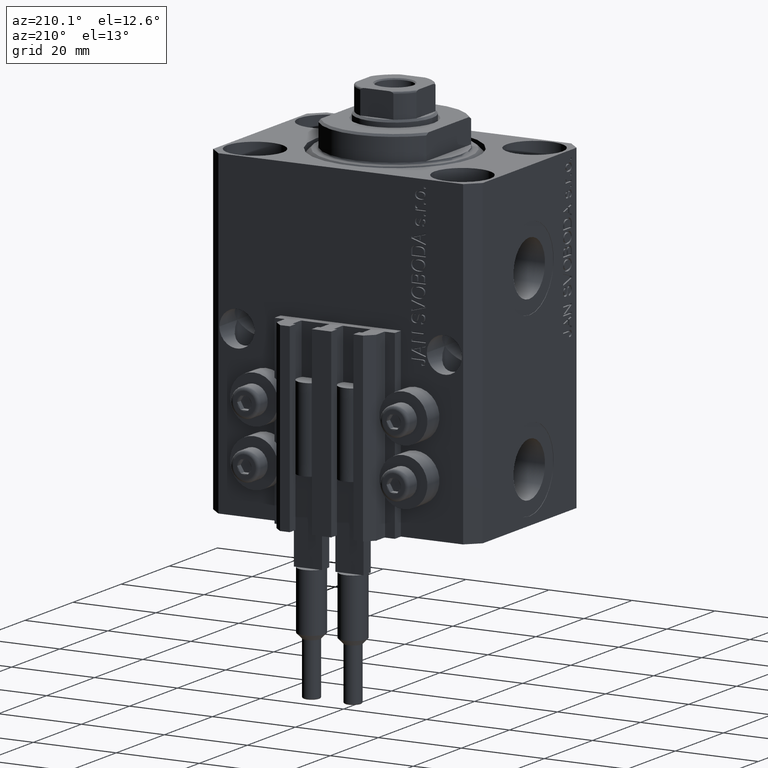
[diagram: clean part render]
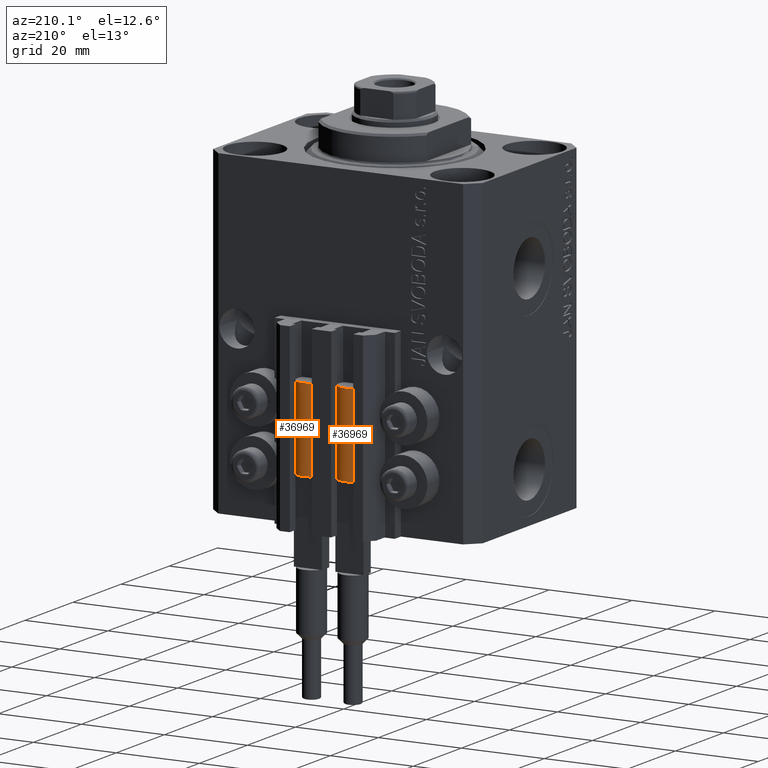
[diagram: same view with one multi-face feature highlighted, each face labeled with its STEP entity id]
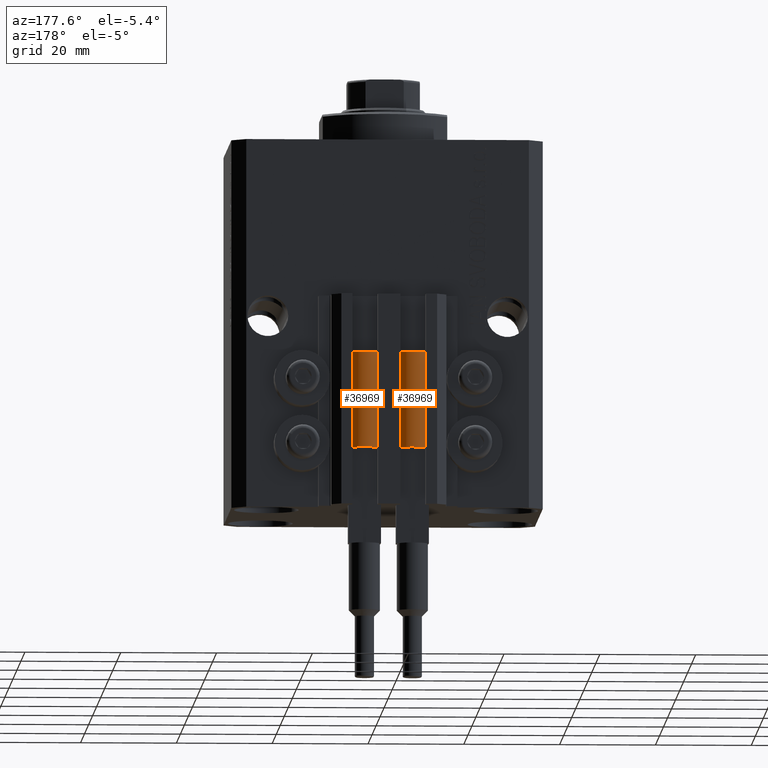
[diagram: same view with one multi-face feature highlighted, each face labeled with its STEP entity id]
A machine part, auxiliary view. The highlighted faces form ONE feature: a constant-radius fillet chain: 2 tangent blend faces with common blend radius 3.4 mm. The faces share edges in the B-rep.
A second angle (auxiliary view) of the same feature is appended — it is thin or edge-on in the first view.
Their STEP definitions:
[1] entity #36969 (Cylinder):
#826 = ORIENTED_EDGE ( 'NONE', *, *, #24943, .T. ) ;
#1154 = LINE ( 'NONE', #30763, #18017 ) ;
#1324 = EDGE_CURVE ( 'NONE', #40229, #32987, #29398, .T. ) ;
#1729 = DIRECTION ( 'NONE',  ( 0.000000000000000000, 0.000000000000000000, 1.000000000000000000 ) ) ;
#2029 = CIRCLE ( 'NONE', #16725, 3.400000000000000355 ) ;
#2174 = CARTESIAN_POINT ( 'NONE',  ( 0.000000000000000000, 0.000000000000000000, 20.00000000000000000 ) ) ;
#2254 = ORIENTED_EDGE ( 'NONE', *, *, #1324, .F. ) ;
#3569 = LINE ( 'NONE', #4048, #10202 ) ;
#4048 = CARTESIAN_POINT ( 'NONE',  ( 3.400000000000000355, 4.163799117101001052E-16, 20.00000000000000000 ) ) ;
#6489 = CARTESIAN_POINT ( 'NONE',  ( 3.400000000000000355, 4.163799117101001052E-16, 0.000000000000000000 ) ) ;
#7389 = AXIS2_PLACEMENT_3D ( 'NONE', #41737, #37625, #41508 ) ;
#7496 = ORIENTED_EDGE ( 'NONE', *, *, #41475, .F. ) ;
#9679 = DIRECTION ( 'NONE',  ( 1.000000000000000000, 0.000000000000000000, 0.000000000000000000 ) ) ;
#10202 = VECTOR ( 'NONE', #47742, 1000.000000000000000 ) ;
#10662 = VERTEX_POINT ( 'NONE', #29427 ) ;
#11510 = DIRECTION ( 'NONE',  ( 0.000000000000000000, 0.000000000000000000, 1.000000000000000000 ) ) ;
#12117 = FACE_OUTER_BOUND ( 'NONE', #19709, .T. ) ;
#12946 = CIRCLE ( 'NONE', #40092, 3.400000000000000355 ) ;
#15049 = CARTESIAN_POINT ( 'NONE',  ( -3.399999999999999467, -4.915049848600952119E-16, 20.00000000000000000 ) ) ;
#15082 = VERTEX_POINT ( 'NONE', #6489 ) ;
#16725 = AXIS2_PLACEMENT_3D ( 'NONE', #44780, #11510, #37500 ) ;
#17203 = EDGE_CURVE ( 'NONE', #10662, #40229, #27896, .T. ) ;
#17638 = VERTEX_POINT ( 'NONE', #19961 ) ;
#18017 = VECTOR ( 'NONE', #45572, 1000.000000000000000 ) ;
#19427 = CARTESIAN_POINT ( 'NONE',  ( 0.000000000000000000, 0.000000000000000000, 20.00000000000000000 ) ) ;
#19709 = EDGE_LOOP ( 'NONE', ( #44709, #826, #24919, #39684, #7496, #2254 ) ) ;
#19961 = CARTESIAN_POINT ( 'NONE',  ( -3.400000000000000355, 0.000000000000000000, 0.000000000000000000 ) ) ;
#20571 = VERTEX_POINT ( 'NONE', #15049 ) ;
#20917 = CARTESIAN_POINT ( 'NONE',  ( -3.051229260478471428, 1.500000000000000000, 20.00000000000000000 ) ) ;
#23320 = DIRECTION ( 'NONE',  ( 1.000000000000000000, 0.000000000000000000, 0.000000000000000000 ) ) ;
#24508 = DIRECTION ( 'NONE',  ( 1.000000000000000000, 0.000000000000000000, 0.000000000000000000 ) ) ;
#24919 = ORIENTED_EDGE ( 'NONE', *, *, #34381, .T. ) ;
#24943 = EDGE_CURVE ( 'NONE', #10662, #15082, #3569, .T. ) ;
#25576 = AXIS2_PLACEMENT_3D ( 'NONE', #34965, #1729, #24508 ) ;
#26278 = AXIS2_PLACEMENT_3D ( 'NONE', #19427, #41776, #23320 ) ;
#27777 = EDGE_CURVE ( 'NONE', #20571, #17638, #1154, .T. ) ;
#27896 = CIRCLE ( 'NONE', #25576, 3.400000000000000355 ) ;
#29398 = CIRCLE ( 'NONE', #26278, 3.400000000000000355 ) ;
#29427 = CARTESIAN_POINT ( 'NONE',  ( 3.400000000000000355, 0.000000000000000000, 20.00000000000000000 ) ) ;
#30763 = CARTESIAN_POINT ( 'NONE',  ( -3.400000000000000355, 0.000000000000000000, 20.00000000000000000 ) ) ;
#31771 = DIRECTION ( 'NONE',  ( 0.000000000000000000, 0.000000000000000000, 1.000000000000000000 ) ) ;
#32987 = VERTEX_POINT ( 'NONE', #20917 ) ;
#34381 = EDGE_CURVE ( 'NONE', #15082, #17638, #2029, .T. ) ;
#34965 = CARTESIAN_POINT ( 'NONE',  ( 0.000000000000000000, 0.000000000000000000, 20.00000000000000000 ) ) ;
#35230 = CARTESIAN_POINT ( 'NONE',  ( 3.051229260478471428, 1.500000000000000000, 20.00000000000000000 ) ) ;
#36969 = ADVANCED_FACE ( 'NONE', ( #12117 ), #45876, .T. ) ;
#37500 = DIRECTION ( 'NONE',  ( 1.000000000000000000, 0.000000000000000000, 0.000000000000000000 ) ) ;
#37625 = DIRECTION ( 'NONE',  ( -0.000000000000000000, -0.000000000000000000, -1.000000000000000000 ) ) ;
#39684 = ORIENTED_EDGE ( 'NONE', *, *, #27777, .F. ) ;
#40092 = AXIS2_PLACEMENT_3D ( 'NONE', #2174, #31771, #9679 ) ;
#40229 = VERTEX_POINT ( 'NONE', #35230 ) ;
#41475 = EDGE_CURVE ( 'NONE', #32987, #20571, #12946, .T. ) ;
#41508 = DIRECTION ( 'NONE',  ( -1.000000000000000000, 0.000000000000000000, 0.000000000000000000 ) ) ;
#41737 = CARTESIAN_POINT ( 'NONE',  ( 0.000000000000000000, 0.000000000000000000, 20.00000000000000000 ) ) ;
#41776 = DIRECTION ( 'NONE',  ( 0.000000000000000000, 0.000000000000000000, 1.000000000000000000 ) ) ;
#44709 = ORIENTED_EDGE ( 'NONE', *, *, #17203, .F. ) ;
#44780 = CARTESIAN_POINT ( 'NONE',  ( 0.000000000000000000, 0.000000000000000000, 0.000000000000000000 ) ) ;
#45572 = DIRECTION ( 'NONE',  ( -0.000000000000000000, -0.000000000000000000, -1.000000000000000000 ) ) ;
#45876 = CYLINDRICAL_SURFACE ( 'NONE', #7389, 3.400000000000000355 ) ;
#47742 = DIRECTION ( 'NONE',  ( -0.000000000000000000, -0.000000000000000000, -1.000000000000000000 ) ) ;
[2] entity #36969 (Cylinder):
#826 = ORIENTED_EDGE ( 'NONE', *, *, #24943, .T. ) ;
#1154 = LINE ( 'NONE', #30763, #18017 ) ;
#1324 = EDGE_CURVE ( 'NONE', #40229, #32987, #29398, .T. ) ;
#1729 = DIRECTION ( 'NONE',  ( 0.000000000000000000, 0.000000000000000000, 1.000000000000000000 ) ) ;
#2029 = CIRCLE ( 'NONE', #16725, 3.400000000000000355 ) ;
#2174 = CARTESIAN_POINT ( 'NONE',  ( 0.000000000000000000, 0.000000000000000000, 20.00000000000000000 ) ) ;
#2254 = ORIENTED_EDGE ( 'NONE', *, *, #1324, .F. ) ;
#3569 = LINE ( 'NONE', #4048, #10202 ) ;
#4048 = CARTESIAN_POINT ( 'NONE',  ( 3.400000000000000355, 4.163799117101001052E-16, 20.00000000000000000 ) ) ;
#6489 = CARTESIAN_POINT ( 'NONE',  ( 3.400000000000000355, 4.163799117101001052E-16, 0.000000000000000000 ) ) ;
#7389 = AXIS2_PLACEMENT_3D ( 'NONE', #41737, #37625, #41508 ) ;
#7496 = ORIENTED_EDGE ( 'NONE', *, *, #41475, .F. ) ;
#9679 = DIRECTION ( 'NONE',  ( 1.000000000000000000, 0.000000000000000000, 0.000000000000000000 ) ) ;
#10202 = VECTOR ( 'NONE', #47742, 1000.000000000000000 ) ;
#10662 = VERTEX_POINT ( 'NONE', #29427 ) ;
#11510 = DIRECTION ( 'NONE',  ( 0.000000000000000000, 0.000000000000000000, 1.000000000000000000 ) ) ;
#12117 = FACE_OUTER_BOUND ( 'NONE', #19709, .T. ) ;
#12946 = CIRCLE ( 'NONE', #40092, 3.400000000000000355 ) ;
#15049 = CARTESIAN_POINT ( 'NONE',  ( -3.399999999999999467, -4.915049848600952119E-16, 20.00000000000000000 ) ) ;
#15082 = VERTEX_POINT ( 'NONE', #6489 ) ;
#16725 = AXIS2_PLACEMENT_3D ( 'NONE', #44780, #11510, #37500 ) ;
#17203 = EDGE_CURVE ( 'NONE', #10662, #40229, #27896, .T. ) ;
#17638 = VERTEX_POINT ( 'NONE', #19961 ) ;
#18017 = VECTOR ( 'NONE', #45572, 1000.000000000000000 ) ;
#19427 = CARTESIAN_POINT ( 'NONE',  ( 0.000000000000000000, 0.000000000000000000, 20.00000000000000000 ) ) ;
#19709 = EDGE_LOOP ( 'NONE', ( #44709, #826, #24919, #39684, #7496, #2254 ) ) ;
#19961 = CARTESIAN_POINT ( 'NONE',  ( -3.400000000000000355, 0.000000000000000000, 0.000000000000000000 ) ) ;
#20571 = VERTEX_POINT ( 'NONE', #15049 ) ;
#20917 = CARTESIAN_POINT ( 'NONE',  ( -3.051229260478471428, 1.500000000000000000, 20.00000000000000000 ) ) ;
#23320 = DIRECTION ( 'NONE',  ( 1.000000000000000000, 0.000000000000000000, 0.000000000000000000 ) ) ;
#24508 = DIRECTION ( 'NONE',  ( 1.000000000000000000, 0.000000000000000000, 0.000000000000000000 ) ) ;
#24919 = ORIENTED_EDGE ( 'NONE', *, *, #34381, .T. ) ;
#24943 = EDGE_CURVE ( 'NONE', #10662, #15082, #3569, .T. ) ;
#25576 = AXIS2_PLACEMENT_3D ( 'NONE', #34965, #1729, #24508 ) ;
#26278 = AXIS2_PLACEMENT_3D ( 'NONE', #19427, #41776, #23320 ) ;
#27777 = EDGE_CURVE ( 'NONE', #20571, #17638, #1154, .T. ) ;
#27896 = CIRCLE ( 'NONE', #25576, 3.400000000000000355 ) ;
#29398 = CIRCLE ( 'NONE', #26278, 3.400000000000000355 ) ;
#29427 = CARTESIAN_POINT ( 'NONE',  ( 3.400000000000000355, 0.000000000000000000, 20.00000000000000000 ) ) ;
#30763 = CARTESIAN_POINT ( 'NONE',  ( -3.400000000000000355, 0.000000000000000000, 20.00000000000000000 ) ) ;
#31771 = DIRECTION ( 'NONE',  ( 0.000000000000000000, 0.000000000000000000, 1.000000000000000000 ) ) ;
#32987 = VERTEX_POINT ( 'NONE', #20917 ) ;
#34381 = EDGE_CURVE ( 'NONE', #15082, #17638, #2029, .T. ) ;
#34965 = CARTESIAN_POINT ( 'NONE',  ( 0.000000000000000000, 0.000000000000000000, 20.00000000000000000 ) ) ;
#35230 = CARTESIAN_POINT ( 'NONE',  ( 3.051229260478471428, 1.500000000000000000, 20.00000000000000000 ) ) ;
#36969 = ADVANCED_FACE ( 'NONE', ( #12117 ), #45876, .T. ) ;
#37500 = DIRECTION ( 'NONE',  ( 1.000000000000000000, 0.000000000000000000, 0.000000000000000000 ) ) ;
#37625 = DIRECTION ( 'NONE',  ( -0.000000000000000000, -0.000000000000000000, -1.000000000000000000 ) ) ;
#39684 = ORIENTED_EDGE ( 'NONE', *, *, #27777, .F. ) ;
#40092 = AXIS2_PLACEMENT_3D ( 'NONE', #2174, #31771, #9679 ) ;
#40229 = VERTEX_POINT ( 'NONE', #35230 ) ;
#41475 = EDGE_CURVE ( 'NONE', #32987, #20571, #12946, .T. ) ;
#41508 = DIRECTION ( 'NONE',  ( -1.000000000000000000, 0.000000000000000000, 0.000000000000000000 ) ) ;
#41737 = CARTESIAN_POINT ( 'NONE',  ( 0.000000000000000000, 0.000000000000000000, 20.00000000000000000 ) ) ;
#41776 = DIRECTION ( 'NONE',  ( 0.000000000000000000, 0.000000000000000000, 1.000000000000000000 ) ) ;
#44709 = ORIENTED_EDGE ( 'NONE', *, *, #17203, .F. ) ;
#44780 = CARTESIAN_POINT ( 'NONE',  ( 0.000000000000000000, 0.000000000000000000, 0.000000000000000000 ) ) ;
#45572 = DIRECTION ( 'NONE',  ( -0.000000000000000000, -0.000000000000000000, -1.000000000000000000 ) ) ;
#45876 = CYLINDRICAL_SURFACE ( 'NONE', #7389, 3.400000000000000355 ) ;
#47742 = DIRECTION ( 'NONE',  ( -0.000000000000000000, -0.000000000000000000, -1.000000000000000000 ) ) ;